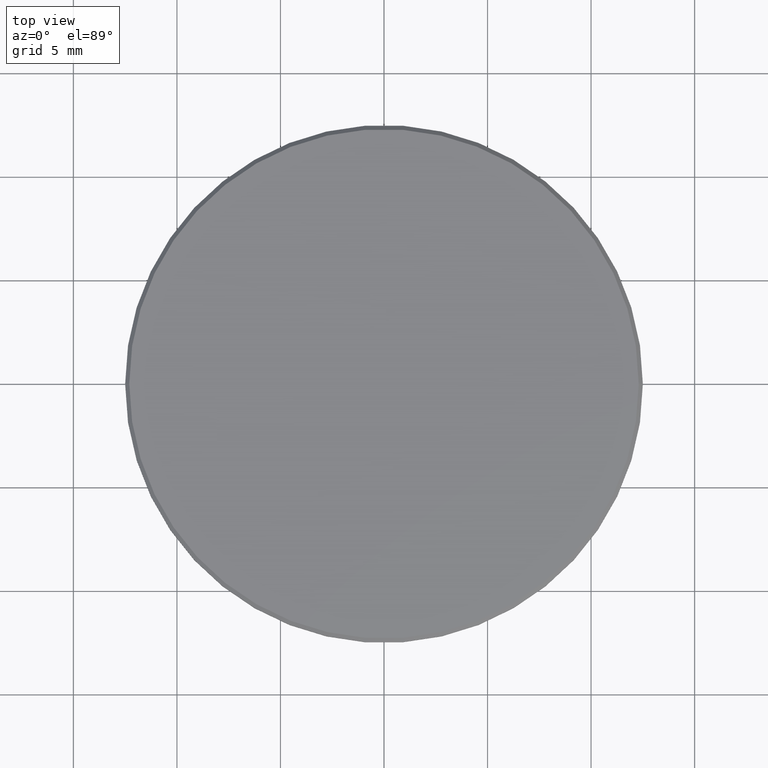
[diagram: clean part render]
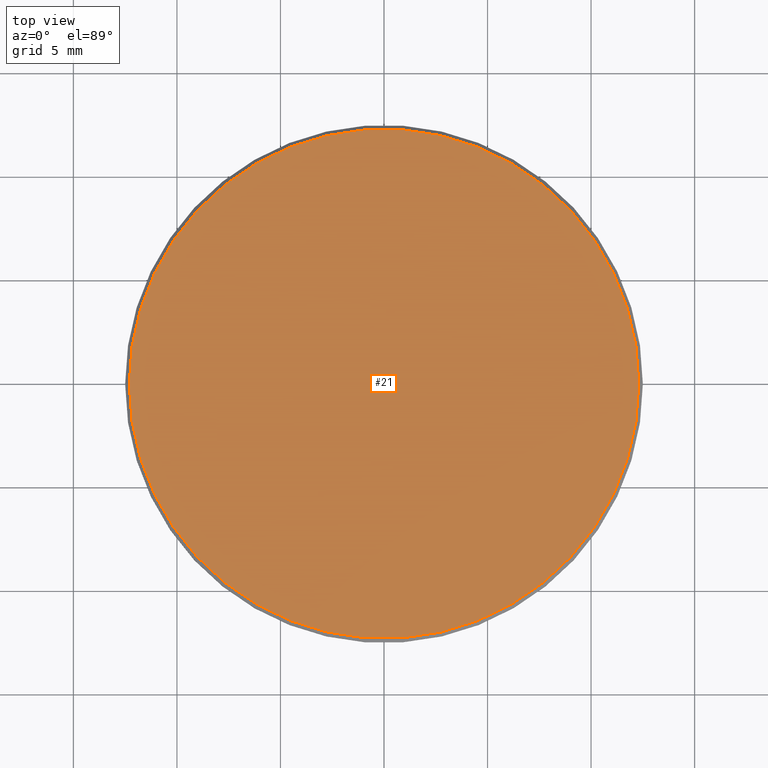
[diagram: same view with one face highlighted and labeled with its STEP entity id]
A machine part, top view. The second image highlights one B-rep face of the part: STEP entity #21.
In plain terms, the highlighted planar face has unit normal (0, 0, 1).
Its self-contained STEP definition (entity closure, byte-faithful):
#3 = DIRECTION ( 'NONE',  ( 1.000000000000000000, 0.000000000000000000, -0.000000000000000000 ) ) ;
#4 = CARTESIAN_POINT ( 'NONE',  ( 0.000000000000000000, 0.000000000000000000, 1.000000000000000000 ) ) ;
#10 = CARTESIAN_POINT ( 'NONE',  ( 12.29999999999999893, 1.518562030942717967E-15, 1.000000000000000000 ) ) ;
#14 = CIRCLE ( 'NONE', #162, 12.29999999999999893 ) ;
#21 = ADVANCED_FACE ( 'NONE', ( #133 ), #184, .T. ) ;
#28 = DIRECTION ( 'NONE',  ( 1.000000000000000000, 0.000000000000000000, 0.000000000000000000 ) ) ;
#35 = EDGE_LOOP ( 'NONE', ( #143, #96 ) ) ;
#37 = DIRECTION ( 'NONE',  ( 0.000000000000000000, 0.000000000000000000, 1.000000000000000000 ) ) ;
#62 = CIRCLE ( 'NONE', #126, 12.29999999999999893 ) ;
#96 = ORIENTED_EDGE ( 'NONE', *, *, #233, .T. ) ;
#99 = CARTESIAN_POINT ( 'NONE',  ( -12.29999999999999893, 0.000000000000000000, 1.000000000000000000 ) ) ;
#120 = DIRECTION ( 'NONE',  ( 0.000000000000000000, 0.000000000000000000, 1.000000000000000000 ) ) ;
#126 = AXIS2_PLACEMENT_3D ( 'NONE', #209, #120, #28 ) ;
#133 = FACE_OUTER_BOUND ( 'NONE', #35, .T. ) ;
#143 = ORIENTED_EDGE ( 'NONE', *, *, #154, .T. ) ;
#153 = DIRECTION ( 'NONE',  ( 0.000000000000000000, 0.000000000000000000, 1.000000000000000000 ) ) ;
#154 = EDGE_CURVE ( 'NONE', #224, #213, #62, .T. ) ;
#162 = AXIS2_PLACEMENT_3D ( 'NONE', #4, #153, #227 ) ;
#184 = PLANE ( 'NONE',  #225 ) ;
#199 = CARTESIAN_POINT ( 'NONE',  ( 0.000000000000000000, 0.000000000000000000, 1.000000000000000000 ) ) ;
#209 = CARTESIAN_POINT ( 'NONE',  ( 0.000000000000000000, 0.000000000000000000, 1.000000000000000000 ) ) ;
#213 = VERTEX_POINT ( 'NONE', #10 ) ;
#224 = VERTEX_POINT ( 'NONE', #99 ) ;
#225 = AXIS2_PLACEMENT_3D ( 'NONE', #199, #37, #3 ) ;
#227 = DIRECTION ( 'NONE',  ( 1.000000000000000000, 0.000000000000000000, 0.000000000000000000 ) ) ;
#233 = EDGE_CURVE ( 'NONE', #213, #224, #14, .T. ) ;